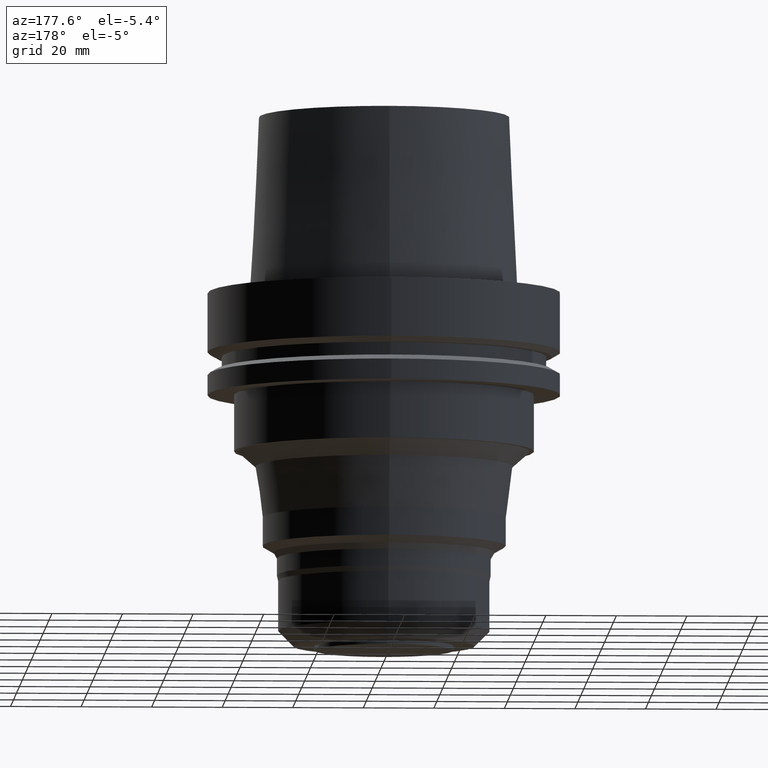
[diagram: clean part render]
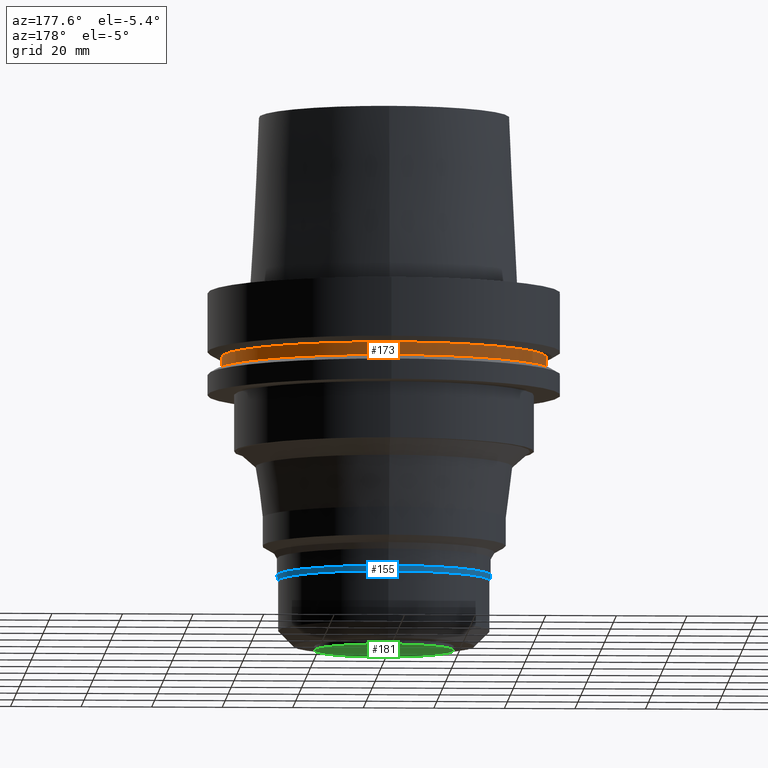
[diagram: same view with three faces highlighted in distinct colors, each labeled with its STEP entity id]
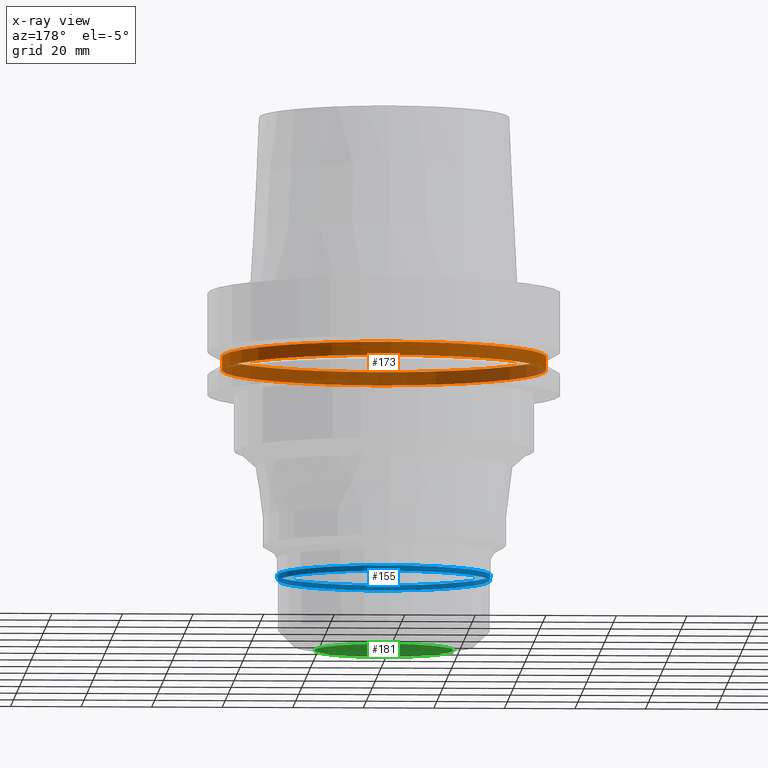
[diagram: x-ray of the same camera — body ghosted, the three highlighted faces saturated]
A machine part, auxiliary view with three faces highlighted in distinct colors.
The next image is the same camera in x-ray (body ghosted, the three faces saturated) — at least one of them is partly hidden behind the body in this view.
Their STEP definitions:

[orange] entity #173 — the highlighted cylindrical surface (bore or boss wall) has radius 46 mm, axis along (0, 0, -1).
#135=EDGE_CURVE('Unnamed[1]',#314,#314,#315,.T.);
#173=ADVANCED_FACE('Unnamed[1]',(#373,#374),#375,.T.);
#178=EDGE_CURVE('Unnamed[1]',#382,#382,#383,.T.);
#314=VERTEX_POINT('',#542);
#315=CIRCLE('',#543,46.0000000000001);
#373=FACE_BOUND('',#617,.T.);
#374=FACE_BOUND('',#618,.T.);
#375=CYLINDRICAL_SURFACE('',#619,46.0000000000001);
#382=VERTEX_POINT('',#628);
#383=CIRCLE('',#629,46.0000000000001);
#542=CARTESIAN_POINT('',(1.10983616172727E-015,46.0,-18.1249999999997));
#543=AXIS2_PLACEMENT_3D('',#780,#781,#782);
#617=EDGE_LOOP('',(#844));
#618=EDGE_LOOP('',(#845));
#619=AXIS2_PLACEMENT_3D('',#846,#847,#848);
#628=CARTESIAN_POINT('',(1.33945743656734E-015,46.0,-21.8749999999988));
#629=AXIS2_PLACEMENT_3D('',#855,#856,#857);
#780=CARTESIAN_POINT('',(1.10983616172727E-015,-3.71760450386739E-014,-18.1249999999997));
#781=DIRECTION('',(6.12323399573677E-017,5.75940563219809E-016,-1.0));
#782=DIRECTION('',(-4.00933410930822E-032,1.0,5.75940563219809E-016));
#844=ORIENTED_EDGE('',*,*,#178,.F.);
#845=ORIENTED_EDGE('',*,*,#135,.T.);
#846=CARTESIAN_POINT('',(1.22464679914731E-015,-3.6096156482637E-014,-19.9999999999993));
#847=DIRECTION('',(6.12323399573677E-017,5.75940563219809E-016,-1.0));
#848=DIRECTION('',(-4.00933410930822E-032,1.0,5.75940563219809E-016));
#855=CARTESIAN_POINT('',(1.33945743656735E-015,-3.50162679266001E-014,-21.8749999999988));
#856=DIRECTION('',(6.12323399573677E-017,5.75940563219809E-016,-1.0));
#857=DIRECTION('',(-4.00933410930822E-032,1.0,5.75940563219809E-016));

[blue] entity #155 — the highlighted conical surface has half-angle 13.134 deg.
#80=EDGE_CURVE('Unnamed[1]',#226,#226,#227,.T.);
#155=ADVANCED_FACE('Unnamed[1]',(#345,#346),#347,.T.);
#185=EDGE_CURVE('Unnamed[1]',#392,#392,#393,.T.);
#226=VERTEX_POINT('',#433);
#227=CIRCLE('',#434,30.0);
#345=FACE_BOUND('',#581,.T.);
#346=FACE_BOUND('',#582,.T.);
#347=CONICAL_SURFACE('',#583,30.1750000000002,0.229231933277035);
#392=VERTEX_POINT('',#641);
#393=CIRCLE('',#642,30.3500000000004);
#433=CARTESIAN_POINT('',(5.00549886215501E-015,30.0,-81.7460000000006));
#434=AXIS2_PLACEMENT_3D('',#679,#680,#681);
#581=EDGE_LOOP('',(#814));
#582=EDGE_LOOP('',(#815));
#583=AXIS2_PLACEMENT_3D('',#816,#817,#818);
#641=CARTESIAN_POINT('',(4.91365035221888E-015,30.3500000000004,-80.2459999999993));
#642=AXIS2_PLACEMENT_3D('',#866,#867,#868);
#679=CARTESIAN_POINT('',(5.00549886215501E-015,-5.3413046606587E-016,-81.7460000000006));
#680=DIRECTION('',(6.12323399573676E-017,5.75940563219809E-016,-1.0));
#681=DIRECTION('',(-4.00933410930822E-032,1.0,5.75940563219809E-016));
#814=ORIENTED_EDGE('',*,*,#80,.F.);
#815=ORIENTED_EDGE('',*,*,#185,.T.);
#816=CARTESIAN_POINT('',(4.95957460718695E-015,-9.66085888481101E-016,-80.996));
#817=DIRECTION('',(-6.12323399573677E-017,-5.75940563219809E-016,1.0));
#818=DIRECTION('',(-4.00933410930822E-032,1.0,5.75940563219809E-016));
#866=CARTESIAN_POINT('',(4.91365035221888E-015,-1.39804131089634E-015,-80.2459999999993));
#867=DIRECTION('',(6.12323399573677E-017,5.75940563219809E-016,-1.0));
#868=DIRECTION('',(-4.00933410930822E-032,1.0,5.75940563219809E-016));

[green] entity #181 — the highlighted planar face has unit normal (0, -0, -1).
#108=EDGE_CURVE('Unnamed[1]',#271,#271,#272,.T.);
#181=ADVANCED_FACE('Unnamed[1]',(#386),#387,.T.);
#271=VERTEX_POINT('',#489);
#272=CIRCLE('',#490,19.7798076148762);
#386=FACE_OUTER_BOUND('',#633,.T.);
#387=PLANE('',#634);
#489=CARTESIAN_POINT('',(6.22120573966859E-015,19.7798076148763,-101.600000000001));
#490=AXIS2_PLACEMENT_3D('',#730,#731,#732);
#633=EDGE_LOOP('',(#859));
#634=AXIS2_PLACEMENT_3D('',#860,#861,#862);
#730=CARTESIAN_POINT('',(6.22120573966859E-015,1.09005934761002E-014,-101.600000000001));
#731=DIRECTION('',(6.12323399573677E-017,5.75940563219809E-016,-1.0));
#732=DIRECTION('',(-4.00933410930822E-032,1.0,5.75940563219809E-016));
#859=ORIENTED_EDGE('',*,*,#108,.T.);
#860=CARTESIAN_POINT('',(6.22120573966857E-015,9.88990380743813,-101.6));
#861=DIRECTION('',(6.12323399573677E-017,-2.78971877193357E-014,-1.0));
#862=DIRECTION('',(1.70338292955409E-030,1.0,-2.78971877193357E-014));